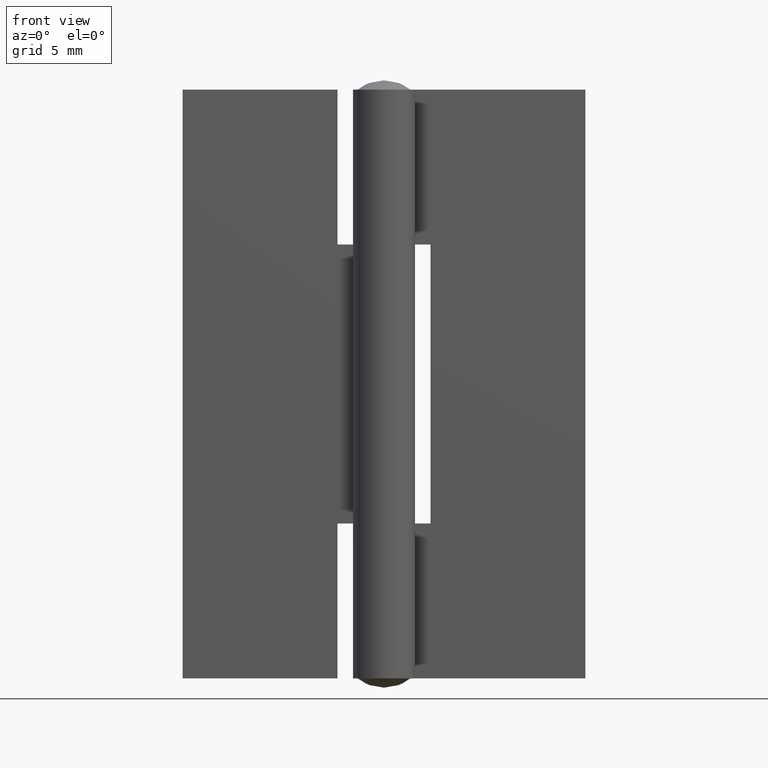
[diagram: clean part render]
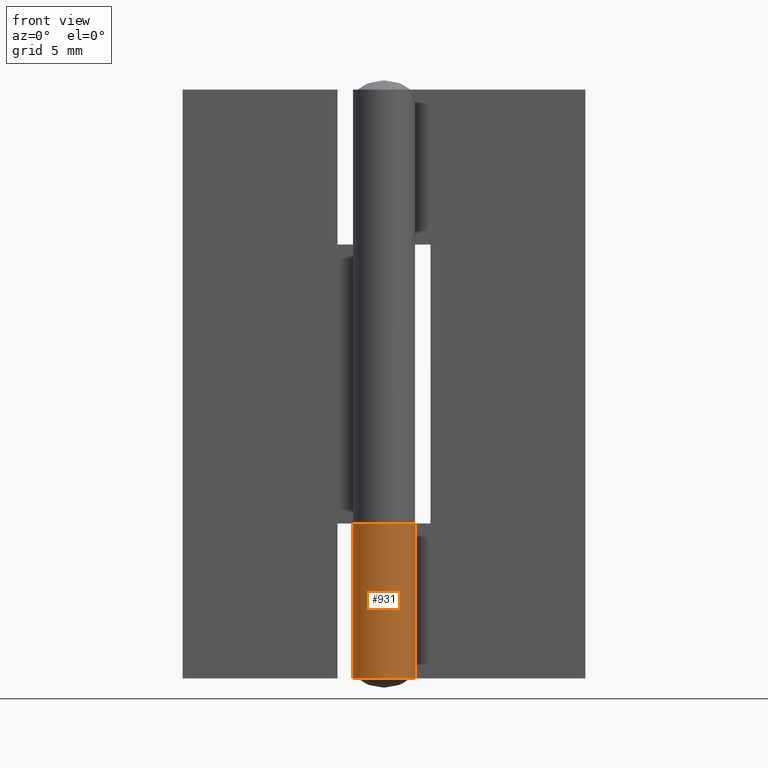
[diagram: same view with one face highlighted and labeled with its STEP entity id]
A machine part, front view. The second image highlights one B-rep face of the part: STEP entity #931.
In plain terms, the highlighted face is a freeform B-spline surface patch.
Its self-contained STEP definition (entity closure, byte-faithful):
#482=CARTESIAN_POINT('',(1.384347E-014,2.0,10.000000000000121));
#483=VERTEX_POINT('',#482);
#489=CARTESIAN_POINT('',(1.636306817195360,1.150000000000020,10.0));
#490=VERTEX_POINT('',#489);
#491=CARTESIAN_POINT('',(1.384347E-014,2.0,10.000000000000121));
#492=CARTESIAN_POINT('',(-0.187211403075741,2.000072139898143,10.000000000000110));
#493=CARTESIAN_POINT('',(-0.485304240396254,1.957815090970642,10.000000000000091));
#494=CARTESIAN_POINT('',(-0.933949147342993,1.786913767961470,10.000000000000050));
#495=CARTESIAN_POINT('',(-1.284567269944251,1.556012738317985,10.000000000000011));
#496=CARTESIAN_POINT('',(-1.572261854343464,1.252961117365231,10.000000000000041));
#497=CARTESIAN_POINT('',(-1.779038993377807,0.939267890704173,9.999999999999989));
#498=CARTESIAN_POINT('',(-1.913340546768011,0.617635918718792,10.000000000000020));
#499=CARTESIAN_POINT('',(-1.990268624002548,0.271534271470165,9.999999999999989));
#500=CARTESIAN_POINT('',(-2.009091484347455,-0.055071191475772,10.000000000000011));
#501=CARTESIAN_POINT('',(-1.966342481556488,-0.428355132701223,10.0));
#502=CARTESIAN_POINT('',(-1.856914225966900,-0.774157930042458,10.0));
#503=CARTESIAN_POINT('',(-1.678935397701654,-1.104871882038141,10.000000000000011));
#504=CARTESIAN_POINT('',(-1.463999908631953,-1.378824051666716,9.999999999999998));
#505=CARTESIAN_POINT('',(-1.213572748188067,-1.600005106779984,10.0));
#506=CARTESIAN_POINT('',(-0.938149427789744,-1.775569787851015,10.000000000000011));
#507=CARTESIAN_POINT('',(-0.670212666612256,-1.892500642887247,10.0));
#508=CARTESIAN_POINT('',(-0.354735783014565,-1.976660192507572,9.999999999999991));
#509=CARTESIAN_POINT('',(-0.063850561467926,-2.007221315506498,10.0));
#510=CARTESIAN_POINT('',(0.262240526324370,-1.990470522599040,10.000000000000020));
#511=CARTESIAN_POINT('',(0.596379743230998,-1.922008412700092,9.999999999999892));
#512=CARTESIAN_POINT('',(0.969650389137549,-1.766601065594922,10.000000000000270));
#513=CARTESIAN_POINT('',(1.347587581841714,-1.503752373370658,9.999999999999721));
#514=CARTESIAN_POINT('',(1.639321805430356,-1.173696956756822,10.000000000000091));
#515=CARTESIAN_POINT('',(1.821275066505872,-0.844788844668606,9.999999999999979));
#516=CARTESIAN_POINT('',(1.929828702703187,-0.551620344270654,9.999999999999996));
#517=CARTESIAN_POINT('',(2.007864711439522,-0.184079398678814,10.000000000000011));
#518=CARTESIAN_POINT('',(2.004379102348838,0.186742569527287,9.999999999999995));
#519=CARTESIAN_POINT('',(1.929165312586292,0.554166920559310,10.000000000000011));
#520=CARTESIAN_POINT('',(1.822534189512452,0.848684176423049,9.999999999999995));
#521=CARTESIAN_POINT('',(1.704086823972226,1.053572918565658,10.000000000000011));
#522=CARTESIAN_POINT('',(1.636306817195360,1.150000000000020,10.0));
#523=B_SPLINE_CURVE_WITH_KNOTS('',3,(#491,#492,#493,#494,#495,#496,#497,#498,#499,#500,#501,#502,#503,#504,#505,#506,#507,#508,#509,#510,#511,#512,#513,#514,#515,#516,#517,#518,#519,#520,#521,#522),.UNSPECIFIED.,.F.,.U.,(4,1,1,1,1,1,1,1,1,1,1,1,1,1,1,1,1,1,1,1,1,1,1,1,1,1,1,1,1,4),(0.000000210223801,0.561607952012469,0.894428262254436,1.435260537319730,1.809678076484035,2.142491704327117,2.558512189307058,2.849694740727631,3.203315907800794,3.536135614091325,3.972962787601211,4.284981784261857,4.659398352681258,5.013017189388416,5.283433496229230,5.637021651609163,5.886632196185214,6.261047386823676,6.510664689647575,6.864284893087612,7.280304801097541,7.717120941181079,8.237117411303814,8.590737452039647,8.840355528582395,9.173172966577081,9.714004568179881,9.942813078190396,10.296436605244811,10.650034254418530),.UNSPECIFIED.);
#524=EDGE_CURVE('',#483,#490,#523,.T.);
#695=CARTESIAN_POINT('',(1.384347E-014,2.0,0.0));
#696=VERTEX_POINT('',#695);
#749=CARTESIAN_POINT('',(1.636306817195360,1.150000000000020,0.0));
#750=VERTEX_POINT('',#749);
#756=CARTESIAN_POINT('',(1.636306817195360,1.150000000000020,0.0));
#757=CARTESIAN_POINT('',(1.744016779867886,0.996875129935445,0.0));
#758=CARTESIAN_POINT('',(1.858566328598863,0.772350327729468,0.0));
#759=CARTESIAN_POINT('',(1.973716633152282,0.379333851996945,0.0));
#760=CARTESIAN_POINT('',(2.015862197590937,0.025687779155407,0.0));
#761=CARTESIAN_POINT('',(1.975554013546179,-0.376423621289574,0.0));
#762=CARTESIAN_POINT('',(1.865271537146499,-0.757377359664604,0.0));
#763=CARTESIAN_POINT('',(1.688211557641040,-1.097938777408574,0.0));
#764=CARTESIAN_POINT('',(1.402935047827389,-1.449131508268836,0.0));
#765=CARTESIAN_POINT('',(1.078087754320612,-1.703854794471455,0.0));
#766=CARTESIAN_POINT('',(0.714073564624530,-1.878076135558515,0.0));
#767=CARTESIAN_POINT('',(0.399811157625323,-1.968489217175552,0.0));
#768=CARTESIAN_POINT('',(0.026902947259339,-2.013075086960539,0.0));
#769=CARTESIAN_POINT('',(-0.411692187017728,-1.978524863712354,0.0));
#770=CARTESIAN_POINT('',(-0.868391616175098,-1.822952749566054,0.0));
#771=CARTESIAN_POINT('',(-1.291873082294338,-1.552996927085938,0.0));
#772=CARTESIAN_POINT('',(-1.600027260754392,-1.228088928147811,0.0));
#773=CARTESIAN_POINT('',(-1.816572102467966,-0.862828171944214,0.0));
#774=CARTESIAN_POINT('',(-1.934624754007541,-0.542663369043124,0.0));
#775=CARTESIAN_POINT('',(-2.009589878096890,-0.146464408524579,0.0));
#776=CARTESIAN_POINT('',(-2.000711608687766,0.273255787612998,0.0));
#777=CARTESIAN_POINT('',(-1.891195838720903,0.684154453396837,0.0));
#778=CARTESIAN_POINT('',(-1.733414121799940,1.017271402447036,0.0));
#779=CARTESIAN_POINT('',(-1.504746424821562,1.341753136103748,0.0));
#780=CARTESIAN_POINT('',(-1.158535706949319,1.656927363991844,0.0));
#781=CARTESIAN_POINT('',(-0.749940330401653,1.871500445797277,0.0));
#782=CARTESIAN_POINT('',(-0.353600418956114,1.979097531953543,0.0));
#783=CARTESIAN_POINT('',(-0.117865729725382,2.000010309104279,0.0));
#784=CARTESIAN_POINT('',(1.384347E-014,2.0,0.0));
#785=B_SPLINE_CURVE_WITH_KNOTS('',3,(#756,#757,#758,#759,#760,#761,#762,#763,#764,#765,#766,#767,#768,#769,#770,#771,#772,#773,#774,#775,#776,#777,#778,#779,#780,#781,#782,#783,#784),.UNSPECIFIED.,.F.,.U.,(4,1,1,1,1,1,1,1,1,1,1,1,1,1,1,1,1,1,1,1,1,1,1,1,1,1,4),(0.000000210224265,0.561607952012910,0.748818999057132,1.227249017833595,1.622470047930248,1.955286493359838,2.412917556230195,2.766509364287373,3.307326115059665,3.640144730539506,3.972962787601636,4.284981784262236,4.763407380662093,5.283433496229447,5.720214702052406,6.261047386823774,6.614669655978860,6.989087581993505,7.280304801097683,7.821126223590865,8.237117411303959,8.549140473342908,8.923555663740618,9.422785883043240,9.942813078190437,10.296436605244830,10.650034254418530),.UNSPECIFIED.);
#786=EDGE_CURVE('',#750,#696,#785,.T.);
#895=CARTESIAN_POINT('',(0.017453070996760,1.999923846128342,10.250000000000121));
#896=CARTESIAN_POINT('',(0.017453070996760,1.999923846128342,-0.256250000000003));
#897=CARTESIAN_POINT('',(-2.496795788303244,2.021865363516517,10.250000000000124));
#898=CARTESIAN_POINT('',(-2.496795788303244,2.021865363516517,-0.256250000000003));
#899=CARTESIAN_POINT('',(-1.952592014239851,-0.432879227876207,10.250000000000121));
#900=CARTESIAN_POINT('',(-1.952592014239851,-0.432879227876207,-0.256250000000003));
#901=CARTESIAN_POINT('',(-1.408388240176459,-2.887623819268929,10.250000000000124));
#902=CARTESIAN_POINT('',(-1.408388240176459,-2.887623819268929,-0.256250000000003));
#903=CARTESIAN_POINT('',(0.861022193616605,-1.805170568699720,10.250000000000121));
#904=CARTESIAN_POINT('',(0.861022193616605,-1.805170568699720,-0.256250000000003));
#905=CARTESIAN_POINT('',(3.130432627409667,-0.722717318130510,10.250000000000124));
#906=CARTESIAN_POINT('',(3.130432627409667,-0.722717318130510,-0.256250000000003));
#907=CARTESIAN_POINT('',(1.565216313704841,1.245029273275239,10.250000000000121));
#908=CARTESIAN_POINT('',(1.565216313704841,1.245029273275239,-0.256250000000003));
#916=(BOUNDED_SURFACE()B_SPLINE_SURFACE(1,2,((#895,#897,#899,#901,#903,#905,#907),(#896,#898,#900,#902,#904,#906,#908)),.UNSPECIFIED.,.F.,.F.,.U.)B_SPLINE_SURFACE_WITH_KNOTS((2,2),(3,2,2,3),(0.0,10.506250000000129),(0.0,3.858741926540562,7.717483853081124,11.576225779621691),.UNSPECIFIED.)GEOMETRIC_REPRESENTATION_ITEM()RATIONAL_B_SPLINE_SURFACE(((1.0,0.622514636637620,1.0,0.622514636637620,1.0,0.622514636637620,1.0),(1.0,0.622514636637620,1.0,0.622514636637620,1.0,0.622514636637620,1.0)))REPRESENTATION_ITEM('')SURFACE());
#917=ORIENTED_EDGE('',*,*,#524,.F.);
#918=CARTESIAN_POINT('',(1.384347E-014,2.0,10.000000000000121));
#919=CARTESIAN_POINT('',(1.384347E-014,2.0,0.0));
#920=QUASI_UNIFORM_CURVE('',1,(#918,#919),.UNSPECIFIED.,.F.,.U.);
#921=EDGE_CURVE('',#483,#696,#920,.T.);
#922=ORIENTED_EDGE('',*,*,#921,.T.);
#923=ORIENTED_EDGE('',*,*,#786,.F.);
#924=CARTESIAN_POINT('',(1.636306817195360,1.150000000000020,10.0));
#925=CARTESIAN_POINT('',(1.636306817195360,1.150000000000020,0.0));
#926=QUASI_UNIFORM_CURVE('',1,(#924,#925),.UNSPECIFIED.,.F.,.U.);
#927=EDGE_CURVE('',#490,#750,#926,.T.);
#928=ORIENTED_EDGE('',*,*,#927,.F.);
#929=EDGE_LOOP('',(#917,#922,#923,#928));
#930=FACE_OUTER_BOUND('',#929,.T.);
#931=ADVANCED_FACE('',(#930),#916,.T.);